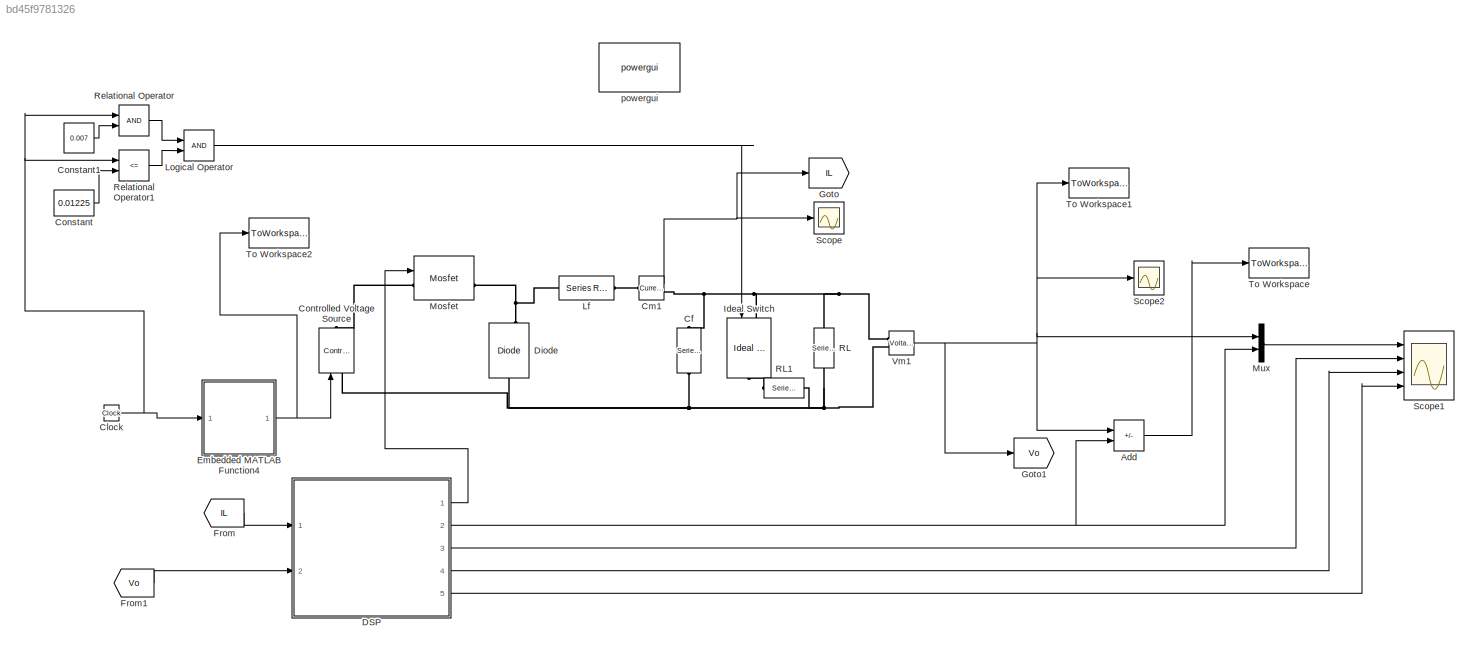
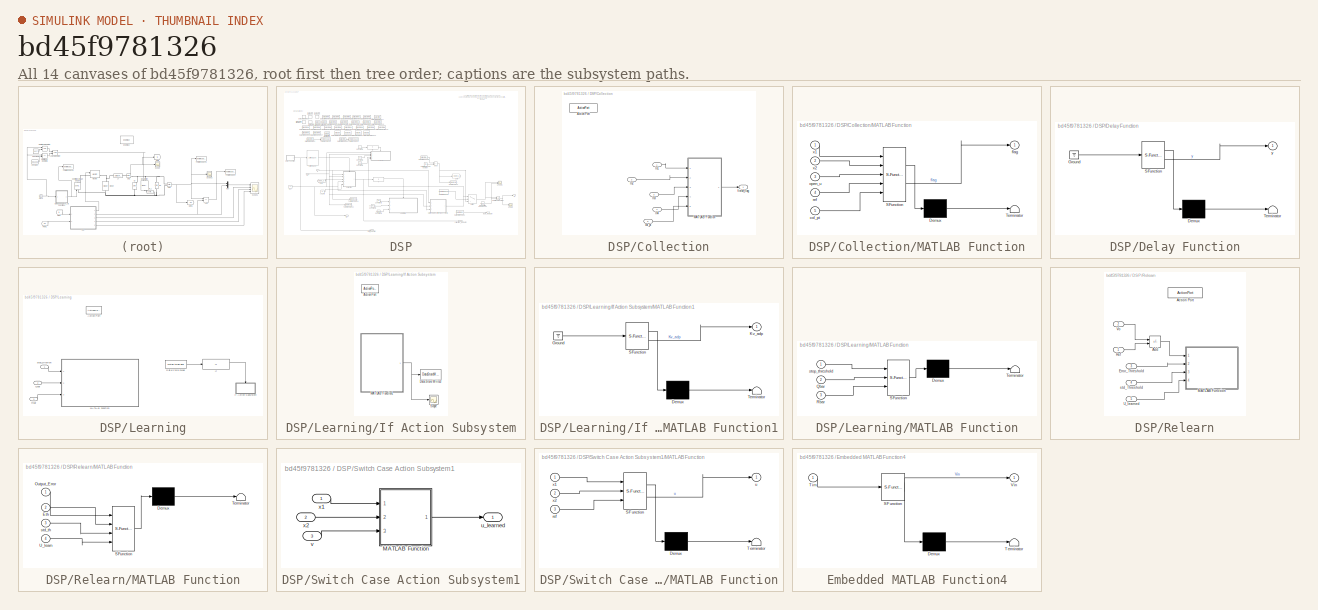
[diagram: thumbnail index - all 14 canvases of the model, root first then tree order]
MODEL slx_bd45f9781326
KIND model
CONFIG AbsTol = auto
CONFIG EnableMultiTasking = off
CONFIG FixedStep = auto
CONFIG MaxStep = 1e-7
CONFIG MinStep = auto
CONFIG RelTol = 1e-5
CONFIG SampleTimeConstraint = Unconstrained
CONFIG Solver = ode45
CONFIG SolverName = ode45
CONFIG StartTime = 0.0
CONFIG StopTime = 2.5e-5*800
BLOCK [Sum] Add
  IconShape = rectangular
  Inputs = +-
  Ports = [2, 1]
BLOCK [Reference] Cf  REF=powerlib/Elements/Series RLC Branch
  NameLocation = left
  Ports = [0, 0, 0, 0, 0, 1, 1]
  SourceBlock = powerlib/Elements/Series RLC Branch
  SourceProductBaseCode = PS
  SourceType = Series RLC Branch
BLOCK [Clock] Clock
BLOCK [Reference] Cm1  REF=powerlib/Measurements/Current Measurement
  Ports = [0, 1, 0, 0, 0, 1, 1]
  SourceBlock = powerlib/Measurements/Current Measurement
  SourceProductBaseCode = PS
  SourceType = Current Measurement
  UserDataPersistent = on
BLOCK [Constant] Constant
  Value = 0.01225
BLOCK [Constant] Constant1
  Value = 0.007
BLOCK [Reference] Controlled Voltage Source  REF=powerlib/Electrical
Sources/Controlled Voltage Source
  NameLocation = right
  Ports = [1, 0, 0, 0, 0, 1, 1]
  SourceBlock = powerlib/Electrical\nSources/Controlled Voltage Source
  SourceProductBaseCode = PS
  SourceType = Controlled Voltage Source
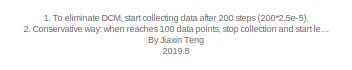
[diagram: DSP - part 1/5, top right region]
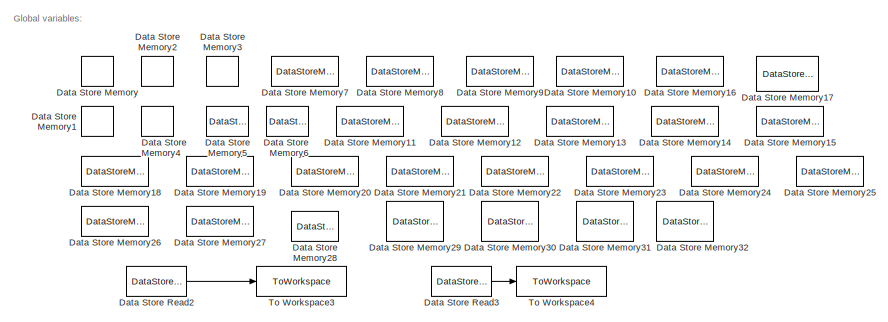
[diagram: DSP - part 2/5, top left region]
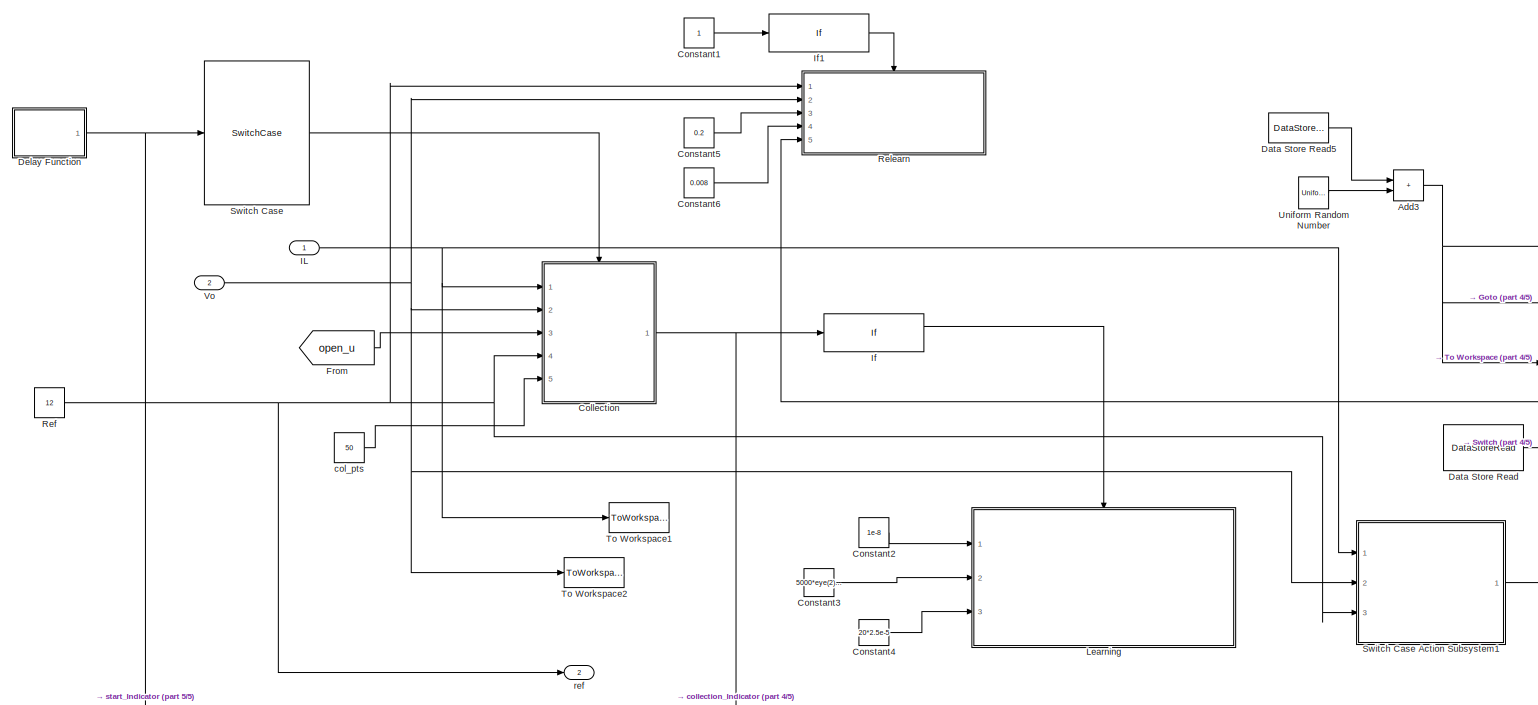
[diagram: DSP - part 3/5, central region]
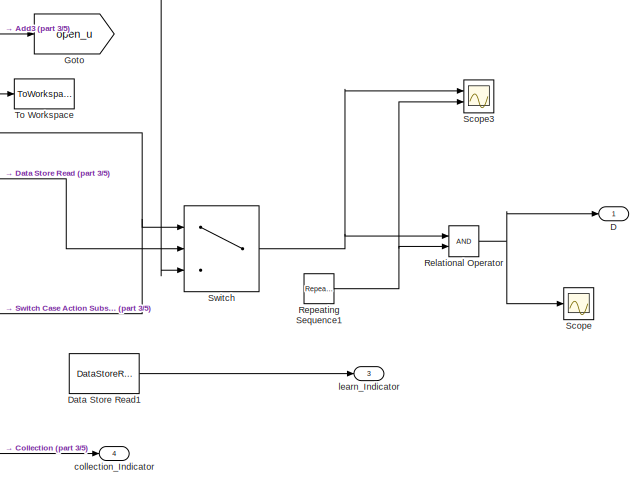
[diagram: DSP - part 4/5, bottom right region]
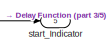
[diagram: DSP - part 5/5, bottom center region]
BLOCK [SubSystem] DSP
  Ports = [2, 5]
  RequestExecContextInheritance = off
BLOCK [Sum] DSP/Add3
  IconShape = rectangular
  Ports = [2, 1]
BLOCK [SubSystem] DSP/Collection
  Ports = [5, 1, 0, 0, 0, 0, 0, 1]
  RequestExecContextInheritance = off
  TreatAsAtomicUnit = on
BLOCK [ActionPort] DSP/Collection/Action Port
  ActionPortLabel = case [ 2 ]:
BLOCK [Inport] DSP/Collection/In1
BLOCK [Inport] DSP/Collection/In2
  Port = 2
BLOCK [Inport] DSP/Collection/In3
  Port = 3
BLOCK [Inport] DSP/Collection/In4
  Port = 4
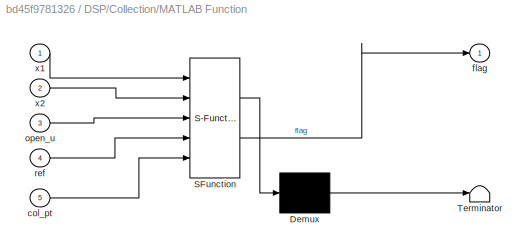
BLOCK [SubSystem] DSP/Collection/MATLAB Function
  ErrorFcn = Stateflow.Translate.translate
  PermitHierarchicalResolution = ExplicitOnly
  Ports = [5, 1]
  RequestExecContextInheritance = off
  SFBlockType = MATLAB Function
  SystemSampleTime = 2.5e-5
  TreatAsAtomicUnit = on
BLOCK [Demux] DSP/Collection/MATLAB Function/ Demux 
  Outputs = 1
  Ports = [1, 1]
BLOCK [S-Function] DSP/Collection/MATLAB Function/ SFunction 
  EnableBusSupport = on
  FunctionName = sf_sfun
  PortCounts = [5 2]
  Ports = [5, 2]
  SFcnIsStateOwnerBlock = off
  SFunctionDeploymentMode = off
  Tag = Stateflow S-Function 2
BLOCK [Terminator] DSP/Collection/MATLAB Function/ Terminator 
BLOCK [Inport] DSP/Collection/MATLAB Function/col_pt
  Port = 5
BLOCK [Outport] DSP/Collection/MATLAB Function/flag
BLOCK [Inport] DSP/Collection/MATLAB Function/open_u
  Port = 3
BLOCK [Inport] DSP/Collection/MATLAB Function/ref
  Port = 4
BLOCK [Inport] DSP/Collection/MATLAB Function/x1
BLOCK [Inport] DSP/Collection/MATLAB Function/x2
  Port = 2
BLOCK [Inport] DSP/Collection/col_pt
  Port = 5
BLOCK [Outport] DSP/Collection/finish_flag
BLOCK [Constant] DSP/Constant1
BLOCK [Constant] DSP/Constant2
  Value = 1e-8
BLOCK [Constant] DSP/Constant3
  Value = 5000*eye(2)*2.5e-5
BLOCK [Constant] DSP/Constant4
  Value = 20*2.5e-5
BLOCK [Constant] DSP/Constant5
  Value = 0.2
BLOCK [Constant] DSP/Constant6
  Value = 0.008
BLOCK [Outport] DSP/D
BLOCK [DataStoreMemory] DSP/Data Store Memory
  InitialValue = zeros(50,1)
  OutDataTypeStr = double
  ReadBeforeWriteMsg = warning
  ShowAdditionalParam = off
  SignalType = real
  WriteAfterReadMsg = warning
  WriteAfterWriteMsg = warning
BLOCK [DataStoreMemory] DSP/Data Store Memory1
  DataStoreName = pt
  InitialValue = 1
  OutDataTypeStr = double
  ReadBeforeWriteMsg = warning
  ShowAdditionalParam = off
  SignalType = real
  WriteAfterReadMsg = warning
  WriteAfterWriteMsg = warning
BLOCK [DataStoreMemory] DSP/Data Store Memory10
  DataStoreName = ep2_old
  InitialValue = zeros(1,2)
  OutDataTypeStr = double
  ReadBeforeWriteMsg = warning
  ShowAdditionalParam = off
  SignalType = real
  VectorParams1D = off
  WriteAfterReadMsg = warning
  WriteAfterWriteMsg = warning
BLOCK [DataStoreMemory] DSP/Data Store Memory11
  DataStoreName = Fee1
  InitialValue = zeros(50,4)
  OutDataTypeStr = double
  ReadBeforeWriteMsg = warning
  ShowAdditionalParam = off
  SignalType = real
  WriteAfterReadMsg = warning
  WriteAfterWriteMsg = warning
BLOCK [DataStoreMemory] DSP/Data Store Memory12
  DataStoreName = Fue1
  InitialValue = zeros(50,2)
  OutDataTypeStr = double
  ReadBeforeWriteMsg = warning
  ShowAdditionalParam = off
  SignalType = real
  WriteAfterReadMsg = warning
  WriteAfterWriteMsg = warning
BLOCK [DataStoreMemory] DSP/Data Store Memory13
  DataStoreName = Fuu1
  InitialValue = zeros(50,1)
  OutDataTypeStr = double
  ReadBeforeWriteMsg = warning
  ShowAdditionalParam = off
  SignalType = real
  WriteAfterReadMsg = warning
  WriteAfterWriteMsg = warning
BLOCK [DataStoreMemory] DSP/Data Store Memory14
  DataStoreName = Fve1
  InitialValue = zeros(50,2)
  OutDataTypeStr = double
  ReadBeforeWriteMsg = warning
  ShowAdditionalParam = off
  SignalType = real
  WriteAfterReadMsg = warning
  WriteAfterWriteMsg = warning
BLOCK [DataStoreMemory] DSP/Data Store Memory15
  DataStoreName = Fvu1
  InitialValue = zeros(50,1)
  OutDataTypeStr = double
  ReadBeforeWriteMsg = warning
  ShowAdditionalParam = off
  SignalType = real
  WriteAfterReadMsg = warning
  WriteAfterWriteMsg = warning
BLOCK [DataStoreMemory] DSP/Data Store Memory16
  DataStoreName = Fvv1
  InitialValue = zeros(50,1)
  OutDataTypeStr = double
  ReadBeforeWriteMsg = warning
  ShowAdditionalParam = off
  SignalType = real
  WriteAfterReadMsg = warning
  WriteAfterWriteMsg = warning
BLOCK [DataStoreMemory] DSP/Data Store Memory17
  DataLogging = on
  DataStoreName = endflag
  OutDataTypeStr = double
  ReadBeforeWriteMsg = warning
  ShowAdditionalParam = off
  SignalType = real
  WriteAfterReadMsg = warning
  WriteAfterWriteMsg = warning
BLOCK [DataStoreMemory] DSP/Data Store Memory18
  DataLogging = on
  DataStoreName = P_learn
  InitialValue = zeros(2,2)
  OutDataTypeStr = double
  ReadBeforeWriteMsg = warning
  ShowAdditionalParam = off
  SignalType = real
  WriteAfterReadMsg = warning
  WriteAfterWriteMsg = warning
BLOCK [DataStoreMemory] DSP/Data Store Memory19
  DataLogging = on
  DataStoreName = K_learn
  InitialValue = zeros(1,2)
  OutDataTypeStr = double
  ReadBeforeWriteMsg = warning
  ShowAdditionalParam = off
  SignalType = real
  VectorParams1D = off
  WriteAfterReadMsg = warning
  WriteAfterWriteMsg = warning
BLOCK [DataStoreMemory] DSP/Data Store Memory2
  DataStoreName = B
  InitialValue = zeros(50,1)
  OutDataTypeStr = double
  ReadBeforeWriteMsg = warning
  ShowAdditionalParam = off
  SignalType = real
  WriteAfterReadMsg = warning
  WriteAfterWriteMsg = warning
BLOCK [DataStoreMemory] DSP/Data Store Memory20
  DataLogging = on
  DataStoreName = SX1
  InitialValue = zeros(2,1)
  OutDataTypeStr = double
  ReadBeforeWriteMsg = warning
  ShowAdditionalParam = off
  SignalType = real
  WriteAfterReadMsg = warning
  WriteAfterWriteMsg = warning
BLOCK [DataStoreMemory] DSP/Data Store Memory21
  DataStoreName = Fee2
  InitialValue = zeros(50,4)
  OutDataTypeStr = double
  ReadBeforeWriteMsg = warning
  ShowAdditionalParam = off
  SignalType = real
  WriteAfterReadMsg = warning
  WriteAfterWriteMsg = warning
BLOCK [DataStoreMemory] DSP/Data Store Memory22
  DataStoreName = Fue2
  InitialValue = zeros(50,2)
  OutDataTypeStr = double
  ReadBeforeWriteMsg = warning
  ShowAdditionalParam = off
  SignalType = real
  WriteAfterReadMsg = warning
  WriteAfterWriteMsg = warning
BLOCK [DataStoreMemory] DSP/Data Store Memory23
  DataStoreName = Fve2
  InitialValue = zeros(50,2)
  OutDataTypeStr = double
  ReadBeforeWriteMsg = warning
  ShowAdditionalParam = off
  SignalType = real
  WriteAfterReadMsg = warning
  WriteAfterWriteMsg = warning
BLOCK [DataStoreMemory] DSP/Data Store Memory24
  DataLogging = on
  DataStoreName = QKf
  InitialValue = zeros(2,2)
  OutDataTypeStr = double
  ReadBeforeWriteMsg = warning
  ShowAdditionalParam = off
  SignalType = real
  WriteAfterReadMsg = warning
  WriteAfterWriteMsg = warning
BLOCK [DataStoreMemory] DSP/Data Store Memory25
  DataLogging = on
  DataStoreName = Kv_learn
  OutDataTypeStr = double
  ReadBeforeWriteMsg = warning
  ShowAdditionalParam = off
  SignalType = real
  WriteAfterReadMsg = warning
  WriteAfterWriteMsg = warning
BLOCK [DataStoreMemory] DSP/Data Store Memory26
  DataLogging = on
  DataStoreName = sol45
  InitialValue = zeros(2,1)
  OutDataTypeStr = double
  ReadBeforeWriteMsg = warning
  ShowAdditionalParam = off
  SignalType = real
  WriteAfterReadMsg = warning
  WriteAfterWriteMsg = warning
BLOCK [DataStoreMemory] DSP/Data Store Memory27
  DataLogging = on
  DataStoreName = K
  InitialValue = [0.2,0.2]
  OutDataTypeStr = double
  ReadBeforeWriteMsg = warning
  ShowAdditionalParam = off
  SignalType = real
  VectorParams1D = off
  WriteAfterReadMsg = warning
  WriteAfterWriteMsg = warning
BLOCK [DataStoreMemory] DSP/Data Store Memory28
  DataStoreName = Test_D
  InitialValue = zeros(50,4)
  OutDataTypeStr = double
  ReadBeforeWriteMsg = warning
  ShowAdditionalParam = off
  SignalType = real
  WriteAfterReadMsg = warning
  WriteAfterWriteMsg = warning
BLOCK [DataStoreMemory] DSP/Data Store Memory29
  DataLogging = on
  DataStoreName = Relearn
  OutDataTypeStr = double
  ReadBeforeWriteMsg = warning
  ShowAdditionalParam = off
  SignalType = real
  WriteAfterReadMsg = warning
  WriteAfterWriteMsg = warning
BLOCK [DataStoreMemory] DSP/Data Store Memory3
  DataStoreName = UU
  InitialValue = zeros(50,1)
  OutDataTypeStr = double
  ReadBeforeWriteMsg = warning
  ShowAdditionalParam = off
  SignalType = real
  WriteAfterReadMsg = warning
  WriteAfterWriteMsg = warning
BLOCK [DataStoreMemory] DSP/Data Store Memory30
  DataStoreName = Err_old
  InitialValue = zeros(1000,1)
  OutDataTypeStr = double
  ReadBeforeWriteMsg = warning
  ShowAdditionalParam = off
  SignalType = real
  WriteAfterReadMsg = warning
  WriteAfterWriteMsg = warning
BLOCK [DataStoreMemory] DSP/Data Store Memory31
  DataStoreName = ept
  InitialValue = 1
  OutDataTypeStr = double
  ReadBeforeWriteMsg = warning
  ShowAdditionalParam = off
  SignalType = real
  WriteAfterReadMsg = warning
  WriteAfterWriteMsg = warning
BLOCK [DataStoreMemory] DSP/Data Store Memory32
  DataStoreName = U_pert
  InitialValue = 0.32
  OutDataTypeStr = double
  ReadBeforeWriteMsg = warning
  ShowAdditionalParam = off
  SignalType = real
  WriteAfterReadMsg = warning
  WriteAfterWriteMsg = warning
BLOCK [DataStoreMemory] DSP/Data Store Memory4
  DataStoreName = dd
  InitialValue = 1
  OutDataTypeStr = uint8
  ReadBeforeWriteMsg = warning
  ShowAdditionalParam = off
  SignalType = real
  WriteAfterReadMsg = warning
  WriteAfterWriteMsg = warning
BLOCK [DataStoreMemory] DSP/Data Store Memory5
  DataLogging = on
  DataStoreName = X_tr1
  InitialValue = [0;1]
  OutDataTypeStr = double
  ReadBeforeWriteMsg = warning
  ShowAdditionalParam = off
  SignalType = real
  WriteAfterReadMsg = warning
  WriteAfterWriteMsg = warning
BLOCK [DataStoreMemory] DSP/Data Store Memory6
  DataLogging = on
  DataStoreName = X_tr2
  InitialValue = [1;0]
  OutDataTypeStr = double
  ReadBeforeWriteMsg = warning
  ShowAdditionalParam = off
  SignalType = real
  WriteAfterReadMsg = warning
  WriteAfterWriteMsg = warning
BLOCK [DataStoreMemory] DSP/Data Store Memory7
  DataStoreName = Dee1
  InitialValue = zeros(50,3)
  OutDataTypeStr = double
  ReadBeforeWriteMsg = warning
  ShowAdditionalParam = off
  SignalType = real
  WriteAfterReadMsg = warning
  WriteAfterWriteMsg = warning
BLOCK [DataStoreMemory] DSP/Data Store Memory8
  DataStoreName = Dee2
  InitialValue = zeros(50,3)
  OutDataTypeStr = double
  ReadBeforeWriteMsg = warning
  ShowAdditionalParam = off
  SignalType = real
  WriteAfterReadMsg = warning
  WriteAfterWriteMsg = warning
BLOCK [DataStoreMemory] DSP/Data Store Memory9
  DataStoreName = ep_old
  InitialValue = zeros(1,2)
  OutDataTypeStr = double
  ReadBeforeWriteMsg = warning
  ShowAdditionalParam = off
  SignalType = real
  VectorParams1D = off
  WriteAfterReadMsg = warning
  WriteAfterWriteMsg = warning
BLOCK [DataStoreRead] DSP/Data Store Read
  DataStoreName = endflag
  Ports = [0, 1]
BLOCK [DataStoreRead] DSP/Data Store Read1
  DataStoreName = endflag
  Ports = [0, 1]
BLOCK [DataStoreRead] DSP/Data Store Read2
  DataStoreName = Test_D
  Ports = [0, 1]
BLOCK [DataStoreRead] DSP/Data Store Read3
  DataStoreName = ep2_old
  Ports = [0, 1]
BLOCK [DataStoreRead] DSP/Data Store Read5
  DataStoreName = U_pert
  Ports = [0, 1]
BLOCK [SubSystem] DSP/Delay Function
  ErrorFcn = Stateflow.Translate.translate
  PermitHierarchicalResolution = ExplicitOnly
  Ports = [0, 1]
  RequestExecContextInheritance = off
  SFBlockType = MATLAB Function
  SystemSampleTime = 2.5e-5
  TreatAsAtomicUnit = on
BLOCK [Demux] DSP/Delay Function/ Demux 
  Outputs = 1
  Ports = [1, 1]
BLOCK [Ground] DSP/Delay Function/ Ground 
BLOCK [S-Function] DSP/Delay Function/ SFunction 
  EnableBusSupport = on
  FunctionName = sf_sfun
  PortCounts = [1 2]
  Ports = [1, 2]
  SFcnIsStateOwnerBlock = off
  SFunctionDeploymentMode = off
  Tag = Stateflow S-Function 3
BLOCK [Terminator] DSP/Delay Function/ Terminator 
BLOCK [Outport] DSP/Delay Function/y
BLOCK [From] DSP/From
  GotoTag = open_u
  TagVisibility = global
BLOCK [Goto] DSP/Goto
  GotoTag = open_u
  TagVisibility = global
BLOCK [Inport] DSP/IL
BLOCK [If] DSP/If
  IfExpression = u1~=0
  Ports = [1, 2]
BLOCK [If] DSP/If1
  IfExpression = u1~=0
  Ports = [1, 1]
  ShowElse = off
BLOCK [SubSystem] DSP/Learning
  Ports = [3, 0, 0, 0, 0, 0, 0, 1]
  RequestExecContextInheritance = off
  TreatAsAtomicUnit = on
BLOCK [ActionPort] DSP/Learning/Action Port
  ActionPortLabel = if(u1~=0)
BLOCK [DataStoreRead] DSP/Learning/Data Store Read
  DataStoreName = endflag
  Ports = [0, 1]
BLOCK [If] DSP/Learning/If
  IfExpression = u1==1
  Ports = [1, 2]
BLOCK [SubSystem] DSP/Learning/If Action Subsystem
  Ports = [0, 0, 0, 0, 0, 0, 0, 1]
  RequestExecContextInheritance = off
  TreatAsAtomicUnit = on
BLOCK [ActionPort] DSP/Learning/If Action Subsystem/Action Port
  ActionPortLabel = if(u1==1)
BLOCK [DataStoreWrite] DSP/Learning/If Action Subsystem/Data Store Write3
  DataStoreName = Kv_learn
  Ports = [1]
BLOCK [SubSystem] DSP/Learning/If Action Subsystem/MATLAB Function1
  ErrorFcn = Stateflow.Translate.translate
  PermitHierarchicalResolution = ExplicitOnly
  Ports = [0, 1]
  RequestExecContextInheritance = off
  SFBlockType = MATLAB Function
  TreatAsAtomicUnit = on
BLOCK [Demux] DSP/Learning/If Action Subsystem/MATLAB Function1/ Demux 
  Outputs = 1
  Ports = [1, 1]
BLOCK [Ground] DSP/Learning/If Action Subsystem/MATLAB Function1/ Ground 
BLOCK [S-Function] DSP/Learning/If Action Subsystem/MATLAB Function1/ SFunction 
  EnableBusSupport = on
  FunctionName = sf_sfun
  PortCounts = [1 2]
  Ports = [1, 2]
  SFcnIsStateOwnerBlock = off
  SFunctionDeploymentMode = off
  Tag = Stateflow S-Function 4
BLOCK [Terminator] DSP/Learning/If Action Subsystem/MATLAB Function1/ Terminator 
BLOCK [Outport] DSP/Learning/If Action Subsystem/MATLAB Function1/Kv_adp
BLOCK [Scope] DSP/Learning/If Action Subsystem/Scope
  Floating = off
  NumInputPorts = 1
  Ports = [1]
  ScopeSpecificationString = C++SS(StrPVP('Location','[440, 420, 1155, 889]'),StrPVP('Open','off'),MxPVP('AxesTitles',54,'struct(''axes1'',''%<SignalLabel>'')'),MxPVP('ScopeGraphics',57,'struct(''FigureColor'',''[0.5 0.5 0.5]'',''AxesColor'',''[0 0 0]'',''AxesTickColor'',''[1 1 1]'',''LineColors'',''[1 1 0;1 0 1;0 1 1;1 0 0;0 1 0;0 0 1]'',''LineStyles'',''-|-|-|-|-|-'',''LineWidths'',''[0.5 0.5 0.5 0.5 0.5 0.5]'',''MarkerStyl...<+260ch>
BLOCK [SubSystem] DSP/Learning/MATLAB Function
  ErrorFcn = Stateflow.Translate.translate
  PermitHierarchicalResolution = ExplicitOnly
  Ports = [3]
  RequestExecContextInheritance = off
  SFBlockType = MATLAB Function
  TreatAsAtomicUnit = on
BLOCK [Demux] DSP/Learning/MATLAB Function/ Demux 
  Outputs = 1
  Ports = [1, 1]
BLOCK [S-Function] DSP/Learning/MATLAB Function/ SFunction 
  EnableBusSupport = on
  FunctionName = sf_sfun
  PortCounts = [3 1]
  Ports = [3, 1]
  SFcnIsStateOwnerBlock = off
  SFunctionDeploymentMode = off
  Tag = Stateflow S-Function 1
BLOCK [Terminator] DSP/Learning/MATLAB Function/ Terminator 
BLOCK [Inport] DSP/Learning/MATLAB Function/Qbar
  Port = 2
BLOCK [Inport] DSP/Learning/MATLAB Function/Rbar
  Port = 3
BLOCK [Inport] DSP/Learning/MATLAB Function/stop_threshold
BLOCK [Inport] DSP/Learning/Qbar
  Port = 2
BLOCK [Inport] DSP/Learning/Rbar
  Port = 3
BLOCK [Inport] DSP/Learning/stop_criterion
BLOCK [Constant] DSP/Ref
  Value = 12
BLOCK [RelationalOperator] DSP/Relational Operator
  InputSameDT = off
  OutDataTypeStr = boolean
  Ports = [2, 1]
BLOCK [SubSystem] DSP/Relearn
  Ports = [5, 0, 0, 0, 0, 0, 0, 1]
  RequestExecContextInheritance = off
BLOCK [ActionPort] DSP/Relearn/Action Port
  ActionPortLabel = if(u1~=0)
BLOCK [Sum] DSP/Relearn/Add
  IconShape = rectangular
  Inputs = +-
  Ports = [2, 1]
BLOCK [Inport] DSP/Relearn/Error_Threshold
  Port = 3
BLOCK [SubSystem] DSP/Relearn/MATLAB Function
  ErrorFcn = Stateflow.Translate.translate
  PermitHierarchicalResolution = ExplicitOnly
  Ports = [4]
  RequestExecContextInheritance = off
  SFBlockType = MATLAB Function
  TreatAsAtomicUnit = on
BLOCK [Demux] DSP/Relearn/MATLAB Function/ Demux 
  Outputs = 1
  Ports = [1, 1]
BLOCK [S-Function] DSP/Relearn/MATLAB Function/ SFunction 
  EnableBusSupport = on
  FunctionName = sf_sfun
  PortCounts = [4 1]
  Ports = [4, 1]
  SFcnIsStateOwnerBlock = off
  SFunctionDeploymentMode = off
  Tag = Stateflow S-Function 6
BLOCK [Terminator] DSP/Relearn/MATLAB Function/ Terminator 
BLOCK [Inport] DSP/Relearn/MATLAB Function/Eth
  Port = 2
BLOCK [Inport] DSP/Relearn/MATLAB Function/Output_Error
BLOCK [Inport] DSP/Relearn/MATLAB Function/U_learn
  Port = 4
BLOCK [Inport] DSP/Relearn/MATLAB Function/std_th
  Port = 3
BLOCK [Inport] DSP/Relearn/Ref
BLOCK [Inport] DSP/Relearn/U_learned
  Port = 5
BLOCK [Inport] DSP/Relearn/Vo
  Port = 2
BLOCK [Inport] DSP/Relearn/std_Threshold
  Port = 4
BLOCK [Reference] DSP/Repeating Sequence1  REF=simulink/Sources/Repeating
Sequence
  Ports = [0, 1]
  SourceBlock = simulink/Sources/Repeating\nSequence
  SourceProductBaseCode = SL
  SourceType = Repeating table
BLOCK [Scope] DSP/Scope
  Floating = off
  NumInputPorts = 1
  Ports = [1]
  ScopeSpecificationString = Simulink.scopes.TimeScopeBlockCfg('CurrentConfiguration', extmgr.ConfigurationSet(extmgr.Configuration('Core','General UI',true),extmgr.Configuration('Core','Source UI',true),extmgr.Configuration('Sources','WiredSimulink',true,'DataLoggingVariableName','ScopeData1','DataLoggingSaveFormat','StructureWithTime','DataLoggingDecimation','1','DataLoggingDecimateData',true),extmgr.Configuration('Visuals'...<+1611ch>
BLOCK [Scope] DSP/Scope3
  Floating = off
  NumInputPorts = 2
  Ports = [2]
  ScopeSpecificationString = Simulink.scopes.TimeScopeBlockCfg('CurrentConfiguration', extmgr.ConfigurationSet(extmgr.Configuration('Core','General UI',true),extmgr.Configuration('Core','Source UI',true),extmgr.Configuration('Sources','WiredSimulink',true,'DataLoggingVariableName','ScopeData4','DataLoggingSaveFormat','StructureWithTime','DataLoggingDecimation','1','DataLoggingDecimateData',true),extmgr.Configuration('Visuals'...<+2330ch>
BLOCK [Switch] DSP/Switch
  InputSameDT = off
  SaturateOnIntegerOverflow = off
  Threshold = 2
BLOCK [SwitchCase] DSP/Switch Case
  CaseConditions = {1,2}
  Ports = [1, 3]
BLOCK [SubSystem] DSP/Switch Case Action Subsystem1
  Ports = [3, 1]
  RequestExecContextInheritance = off
  TreatAsAtomicUnit = on
BLOCK [SubSystem] DSP/Switch Case Action Subsystem1/MATLAB Function
  ErrorFcn = Stateflow.Translate.translate
  PermitHierarchicalResolution = ExplicitOnly
  Ports = [3, 1]
  RequestExecContextInheritance = off
  SFBlockType = MATLAB Function
  SystemSampleTime = 2.5e-5
  TreatAsAtomicUnit = on
BLOCK [Demux] DSP/Switch Case Action Subsystem1/MATLAB Function/ Demux 
  Outputs = 1
  Ports = [1, 1]
BLOCK [S-Function] DSP/Switch Case Action Subsystem1/MATLAB Function/ SFunction 
  EnableBusSupport = on
  FunctionName = sf_sfun
  PortCounts = [3 2]
  Ports = [3, 2]
  SFcnIsStateOwnerBlock = off
  SFunctionDeploymentMode = off
  Tag = Stateflow S-Function 5
BLOCK [Terminator] DSP/Switch Case Action Subsystem1/MATLAB Function/ Terminator 
BLOCK [Inport] DSP/Switch Case Action Subsystem1/MATLAB Function/ref
  Port = 3
BLOCK [Outport] DSP/Switch Case Action Subsystem1/MATLAB Function/u
BLOCK [Inport] DSP/Switch Case Action Subsystem1/MATLAB Function/x1
BLOCK [Inport] DSP/Switch Case Action Subsystem1/MATLAB Function/x2
  Port = 2
BLOCK [Outport] DSP/Switch Case Action Subsystem1/u_learned
BLOCK [Inport] DSP/Switch Case Action Subsystem1/v
  Port = 3
BLOCK [Inport] DSP/Switch Case Action Subsystem1/x1
BLOCK [Inport] DSP/Switch Case Action Subsystem1/x2
  Port = 2
BLOCK [ToWorkspace] DSP/To Workspace
  FixptAsFi = on
  MaxDataPoints = inf
  Ports = [1]
  SampleTime = 2.5e-5
  SaveFormat = Structure With Time
  VariableName = bar_duty1
BLOCK [ToWorkspace] DSP/To Workspace1
  FixptAsFi = on
  MaxDataPoints = inf
  Ports = [1]
  SampleTime = 2.5e-5
  SaveFormat = Structure With Time
  VariableName = IL
BLOCK [ToWorkspace] DSP/To Workspace2
  FixptAsFi = on
  MaxDataPoints = inf
  Ports = [1]
  SampleTime = 2.5e-5
  SaveFormat = Structure With Time
  VariableName = VO
BLOCK [ToWorkspace] DSP/To Workspace3
  FixptAsFi = on
  MaxDataPoints = inf
  Ports = [1]
  SampleTime = -1
  SaveFormat = Timeseries
  VariableName = Test_out
BLOCK [ToWorkspace] DSP/To Workspace4
  FixptAsFi = on
  MaxDataPoints = inf
  Ports = [1]
  SampleTime = -1
  SaveFormat = Timeseries
  VariableName = ep2_out
BLOCK [UniformRandomNumber] DSP/Uniform Random Number
  Maximum = 5e-3
  Minimum = -5e-3
  SampleTime = 2.5e-5
BLOCK [Inport] DSP/Vo
  Port = 2
BLOCK [Constant] DSP/col_pts
  Value = 50
BLOCK [Outport] DSP/collection_Indicator
  Port = 4
BLOCK [Outport] DSP/learn_Indicator
  Port = 3
BLOCK [Outport] DSP/ref
  Port = 2
BLOCK [Outport] DSP/start_Indicator
  Port = 5
BLOCK [Reference] Diode  REF=powerlib/Power
Electronics/Diode
  NameLocation = right
  Ports = [0, 1, 0, 0, 0, 1, 1]
  SourceBlock = powerlib/Power\nElectronics/Diode
  SourceProductBaseCode = PS
  SourceType = Diode
BLOCK [SubSystem] Embedded MATLAB Function4
  ErrorFcn = Stateflow.Translate.translate
  PermitHierarchicalResolution = ExplicitOnly
  Ports = [1, 1]
  RequestExecContextInheritance = off
  SFBlockType = MATLAB Function
  SystemSampleTime = 2.5e-5
  TreatAsAtomicUnit = on
BLOCK [Demux] Embedded MATLAB Function4/ Demux 
  Outputs = 1
  Ports = [1, 1]
BLOCK [S-Function] Embedded MATLAB Function4/ SFunction 
  EnableBusSupport = on
  FunctionName = sf_sfun
  PortCounts = [1 2]
  Ports = [1, 2]
  SFcnIsStateOwnerBlock = off
  SFunctionDeploymentMode = off
  Tag = Stateflow S-Function 8
BLOCK [Terminator] Embedded MATLAB Function4/ Terminator 
BLOCK [Inport] Embedded MATLAB Function4/Tim
BLOCK [Outport] Embedded MATLAB Function4/Vin
BLOCK [From] From
  GotoTag = IL
BLOCK [From] From1
  GotoTag = Vo
BLOCK [Goto] Goto
  GotoTag = IL
BLOCK [Goto] Goto1
  GotoTag = Vo
BLOCK [Reference] Ideal Switch  REF=powerlib/Power
Electronics/Ideal Switch
  NameLocation = left
  Ports = [1, 0, 0, 0, 0, 1, 1]
  SourceBlock = powerlib/Power\nElectronics/Ideal Switch
  SourceProductBaseCode = PS
  SourceType = Ideal Switch
BLOCK [Reference] Lf  REF=powerlib/Elements/Series RLC Branch
  Ports = [0, 0, 0, 0, 0, 1, 1]
  SourceBlock = powerlib/Elements/Series RLC Branch
  SourceProductBaseCode = PS
  SourceType = Series RLC Branch
BLOCK [Logic] Logical Operator
  AllPortsSameDT = off
  OutDataTypeStr = boolean
  Ports = [2, 1]
BLOCK [Reference] Mosfet  REF=powerlib/Power
Electronics/Mosfet
  Ports = [1, 1, 0, 0, 0, 1, 1]
  SourceBlock = powerlib/Power\nElectronics/Mosfet
  SourceProductBaseCode = PS
  SourceType = Mosfet
BLOCK [Mux] Mux
  DisplayOption = bar
  Inputs = 2
  Ports = [2, 1]
BLOCK [Reference] RL  REF=powerlib/Elements/Series RLC Branch
  NameLocation = left
  Ports = [0, 0, 0, 0, 0, 1, 1]
  SourceBlock = powerlib/Elements/Series RLC Branch
  SourceProductBaseCode = PS
  SourceType = Series RLC Branch
BLOCK [Reference] RL1  REF=powerlib/Elements/Series RLC Branch
  Ports = [0, 0, 0, 0, 0, 1, 1]
  SourceBlock = powerlib/Elements/Series RLC Branch
  SourceProductBaseCode = PS
  SourceType = Series RLC Branch
BLOCK [RelationalOperator] Relational Operator
  InputSameDT = off
  OutDataTypeStr = boolean
  Ports = [2, 1]
  RndMeth = Simplest
BLOCK [RelationalOperator] Relational Operator1
  InputSameDT = off
  Operator = <=
  OutDataTypeStr = boolean
  Ports = [2, 1]
  RndMeth = Simplest
BLOCK [Scope] Scope
  Floating = off
  NumInputPorts = 1
  Ports = [1]
  ScopeSpecificationString = Simulink.scopes.TimeScopeBlockCfg('CurrentConfiguration', extmgr.ConfigurationSet(extmgr.Configuration('Core','General UI',true),extmgr.Configuration('Core','Source UI',true),extmgr.Configuration('Sources','WiredSimulink',true,'DataLoggingVariableName','ScopeData1','DataLoggingSaveFormat','Array','DataLoggingDecimation','1','DataLoggingDecimateData',true),extmgr.Configuration('Visuals','Time Domai...<+1650ch>
BLOCK [Scope] Scope1
  Floating = off
  NumInputPorts = 4
  Ports = [4]
  ScopeSpecificationString = Simulink.scopes.TimeScopeBlockCfg('CurrentConfiguration', extmgr.ConfigurationSet(extmgr.Configuration('Core','General UI',true),extmgr.Configuration('Core','Source UI',true),extmgr.Configuration('Sources','WiredSimulink',true,'DataLoggingVariableName','ScopeData2','DataLoggingSaveFormat','Array','DataLoggingDecimation','1','DataLoggingDecimateData',true),extmgr.Configuration('Visuals','Time Domai...<+3699ch>
BLOCK [Scope] Scope2
  Floating = off
  NumInputPorts = 1
  Ports = [1]
  ScopeSpecificationString = Simulink.scopes.TimeScopeBlockCfg('CurrentConfiguration', extmgr.ConfigurationSet(extmgr.Configuration('Core','General UI',true),extmgr.Configuration('Core','Source UI',true),extmgr.Configuration('Sources','WiredSimulink',true,'DataLoggingVariableName','ScopeData3','DataLoggingSaveFormat','Array','DataLoggingDecimation','1','DataLoggingDecimateData',true),extmgr.Configuration('Visuals','Time Domai...<+1677ch>
BLOCK [ToWorkspace] To Workspace
  FixptAsFi = on
  MaxDataPoints = inf
  Ports = [1]
  SampleTime = -1
  SaveFormat = Timeseries
  VariableName = errout
BLOCK [ToWorkspace] To Workspace1
  FixptAsFi = on
  MaxDataPoints = inf
  Ports = [1]
  SampleTime = -1
  SaveFormat = Timeseries
  VariableName = y_out
BLOCK [ToWorkspace] To Workspace2
  FixptAsFi = on
  MaxDataPoints = inf
  Ports = [1]
  SampleTime = -1
  SaveFormat = Timeseries
  VariableName = v_in
BLOCK [Reference] Vm1  REF=powerlib/Measurements/Voltage Measurement
  Ports = [0, 1, 0, 0, 0, 2]
  SourceBlock = powerlib/Measurements/Voltage Measurement
  SourceProductBaseCode = PS
  SourceType = Voltage Measurement
  UserDataPersistent = on
BLOCK [Reference] powergui  REF=powerlib/powergui
  Ports = []
  Priority = 1
  SourceBlock = powerlib/powergui
  SourceProductBaseCode = PS
  SourceType = PSB option menu block
ANNOTATION DSP: 1. To eliminate DCM, start collecting data after 200 steps (200*2.5e-5), 2. Conservative way: when reaches 100 data points, stop collection and start learning. By Jiaxin Teng 2019.8
ANNOTATION DSP: Global variables:
LINE Add:1 -> To Workspace:1
NET Clock:1 -> Embedded MATLAB Function4:1, Relational Operator1:1, Relational Operator:1
NET Cm1:1 -> Goto:1, Scope:1
LINE Constant1:1 -> Relational Operator:2
LINE Constant:1 -> Relational Operator1:2
NET DSP/Add3:1 -> DSP/Goto:1, DSP/Switch:3, DSP/To Workspace:1
LINE DSP/Collection/In1:1 -> DSP/Collection/MATLAB Function:1
LINE DSP/Collection/In2:1 -> DSP/Collection/MATLAB Function:2
LINE DSP/Collection/In3:1 -> DSP/Collection/MATLAB Function:3
LINE DSP/Collection/In4:1 -> DSP/Collection/MATLAB Function:4
LINE DSP/Collection/MATLAB Function:1 -> DSP/Collection/finish_flag:1
LINE DSP/Collection/col_pt:1 -> DSP/Collection/MATLAB Function:5
NET DSP/Collection:1 -> DSP/If:1, DSP/collection_Indicator:1
LINE DSP/Constant1:1 -> DSP/If1:1
LINE DSP/Constant2:1 -> DSP/Learning:1
LINE DSP/Constant3:1 -> DSP/Learning:2
LINE DSP/Constant4:1 -> DSP/Learning:3
LINE DSP/Constant5:1 -> DSP/Relearn:3
LINE DSP/Constant6:1 -> DSP/Relearn:4
LINE DSP/Data Store Read1:1 -> DSP/learn_Indicator:1
LINE DSP/Data Store Read2:1 -> DSP/To Workspace3:1
LINE DSP/Data Store Read3:1 -> DSP/To Workspace4:1
LINE DSP/Data Store Read5:1 -> DSP/Add3:1
LINE DSP/Data Store Read:1 -> DSP/Switch:2
NET DSP/Delay Function:1 -> DSP/Switch Case:1, DSP/start_Indicator:1
LINE DSP/From:1 -> DSP/Collection:3
NET DSP/IL:1 -> DSP/Collection:1, DSP/Switch Case Action Subsystem1:1, DSP/To Workspace1:1
LINE DSP/If1:1 -> DSP/Relearn:ifaction
LINE DSP/If:1 -> DSP/Learning:ifaction
LINE DSP/Learning/Data Store Read:1 -> DSP/Learning/If:1
NET DSP/Learning/If Action Subsystem/MATLAB Function1:1 -> DSP/Learning/If Action Subsystem/Data Store Write3:1, DSP/Learning/If Action Subsystem/Scope:1
LINE DSP/Learning/If:1 -> DSP/Learning/If Action Subsystem:ifaction
LINE DSP/Learning/Qbar:1 -> DSP/Learning/MATLAB Function:2
LINE DSP/Learning/Rbar:1 -> DSP/Learning/MATLAB Function:3
LINE DSP/Learning/stop_criterion:1 -> DSP/Learning/MATLAB Function:1
NET DSP/Ref:1 -> DSP/Collection:4, DSP/Relearn:1, DSP/Switch Case Action Subsystem1:3, DSP/ref:1
NET DSP/Relational Operator:1 -> DSP/D:1, DSP/Scope:1
LINE DSP/Relearn/Add:1 -> DSP/Relearn/MATLAB Function:1
LINE DSP/Relearn/Error_Threshold:1 -> DSP/Relearn/MATLAB Function:2
LINE DSP/Relearn/Ref:1 -> DSP/Relearn/Add:2
LINE DSP/Relearn/U_learned:1 -> DSP/Relearn/MATLAB Function:4
LINE DSP/Relearn/Vo:1 -> DSP/Relearn/Add:1
LINE DSP/Relearn/std_Threshold:1 -> DSP/Relearn/MATLAB Function:3
NET DSP/Repeating Sequence1:1 -> DSP/Relational Operator:2, DSP/Scope3:2
LINE DSP/Switch Case Action Subsystem1/MATLAB Function:1 -> DSP/Switch Case Action Subsystem1/u_learned:1
LINE DSP/Switch Case Action Subsystem1/v:1 -> DSP/Switch Case Action Subsystem1/MATLAB Function:3
LINE DSP/Switch Case Action Subsystem1/x1:1 -> DSP/Switch Case Action Subsystem1/MATLAB Function:1
LINE DSP/Switch Case Action Subsystem1/x2:1 -> DSP/Switch Case Action Subsystem1/MATLAB Function:2
NET DSP/Switch Case Action Subsystem1:1 -> DSP/Relearn:5, DSP/Switch:1
LINE DSP/Switch Case:2 -> DSP/Collection:ifaction
NET DSP/Switch:1 -> DSP/Relational Operator:1, DSP/Scope3:1
LINE DSP/Uniform Random Number:1 -> DSP/Add3:2
NET DSP/Vo:1 -> DSP/Collection:2, DSP/Relearn:2, DSP/Switch Case Action Subsystem1:2, DSP/To Workspace2:1
LINE DSP/col_pts:1 -> DSP/Collection:5
LINE DSP:1 -> Mosfet:1
NET DSP:2 -> Add:2, Mux:2
LINE DSP:3 -> Scope1:2
LINE DSP:4 -> Scope1:3
LINE DSP:5 -> Scope1:4
NET Embedded MATLAB Function4:1 -> Controlled Voltage Source:1, To Workspace2:1
LINE From1:1 -> DSP:2
LINE From:1 -> DSP:1
LINE Logical Operator:1 -> Ideal Switch:1
LINE Mux:1 -> Scope1:1
LINE Relational Operator1:1 -> Logical Operator:2
LINE Relational Operator:1 -> Logical Operator:1
NET Vm1:1 -> Add:1, Goto1:1, Mux:1, Scope2:1, To Workspace1:1
PNET net1: Cf:LConn1 -- Cm1:RConn1 -- Ideal Switch:LConn1 -- RL:LConn1 -- Vm1:LConn1
PNET net2: Cf:RConn1 -- Controlled Voltage Source:LConn1 -- Diode:LConn1 -- RL1:RConn1 -- RL:RConn1 -- Vm1:LConn2
PLINE Cm1:LConn1 -- Lf:RConn1
PLINE Controlled Voltage Source:RConn1 -- Mosfet:LConn1
PNET net3: Diode:RConn1 -- Lf:LConn1 -- Mosfet:RConn1
PLINE Ideal Switch:RConn1 -- RL1:LConn1
note: NET lines group one-source signal fan-out (src -> all destinations, sorted); 1:1 wires keep LINE; PNET lines group multi-terminal physical nets as a canonical sorted terminal list (undirected conserving connections); 2-terminal nets keep the pairwise PLINE form
CHART DSP/Learning/If Action
Subsystem/MATLAB Function1 states=1 transitions=1
  STATE_LABEL 'eML_blk_kernel()'
  STATE_LABEL "SCRIPT:\nfunction Kv_adp  = fcn\nglobal Dee2 Fee2 Fue2 Fve2 Fvu1 Fuu1 Fvv1 K_learn SX1 endflag QKf X_tr1 X_tr2 sol45\n\n\n    phi12=Dee2(2:end,:);\n    Y2=Fee2(1:end-1,:)*QKf(:); \n    phi22=-2*((Fee2(1:end-1,:)*kron(K_learn',eye(2)))+Fue2(1:end-1,:));\n    phi32=-Fuu1(1:end-1,:)+Fee2(1:end-1,:)*kron(K_learn',K_learn');\n    phi42=-Fvv1(1:end-1,:);\n    phi52=2*Fve2(1:end-1,:);\n    phi62=2*Fvu1(1:end-1);\n  ...<+304ch>"
CHART DSP/Switch Case Action
Subsystem1/MATLAB Function states=1 transitions=1
  STATE_LABEL 'eML_blk_kernel()'
  STATE_LABEL 'SCRIPT:\nfunction u = fcn(x1,x2,ref)\nglobal K_learn Kv_learn\n\nu=-K_learn*[x1;x2]+Kv_learn*ref;\n\nif(u>1)\n    u=1;\nelseif(u<0)\n    u=0;\nend\n\nend\n'
CHART DSP/Relearn/MATLAB Function states=1 transitions=1
  STATE_LABEL 'eML_blk_kernel()'
  STATE_LABEL 'SCRIPT:\nfunction fcn(Output_Error, Eth, std_th, U_learn)\nglobal endflag pt Relearn Err_old ept U_pert\n\nErr_old(ept) = Output_Error;\nept = ept+1;\nif ept>(length(Err_old))\n    ept=ept-(length(Err_old));\nend\nerr_mean = mean(Err_old);\nerr_std = std(Err_old);\n\nif ( (abs(err_mean) > Eth) && (err_std < std_th) ) && ( (endflag == 2)&& (Relearn == 0) )\n    U_pert = U_learn;\n    pt=1;\n    endflag=0;\n\nend\n\ne...<+3ch>'
CHART Embedded
MATLAB Function4 states=1 transitions=1
  STATE_LABEL 'eML_blk_kernel()'
  STATE_LABEL 'SCRIPT:\nfunction Vin = fcn(Tim)  \n\nVin=40;\n\n% if (Tim>0.009)&&(Tim<0.01275)\n%     Vin=48;\n% elseif (Tim>=0.01275)&&(Tim<0.0163)\n%     Vin=60;\n% elseif (Tim>=0.0163)\n%     Vin=36;\n% end\n\nend'
CHART DSP/Learning/MATLAB Function states=1 transitions=1
  STATE_LABEL 'eML_blk_kernel()'
  STATE_LABEL "SCRIPT:\nfunction fcn(stop_threshold,Qbar,Rbar)\nglobal Dee1 Fee1 Fue1 Fve1 Fvu1 Fuu1 Fvv1 endflag QKf sol45 P_learn K_learn SX1 K\n    \nphi1=Dee1(2:end,:); Pp=zeros(2); \n\n\n%for m=1:50\nwhile endflag==0\nQK=-Qbar-K'*Rbar*K;\n\nphi2=-2*((Fee1(1:end-1,:)*kron(K',eye(2)))+Fue1(1:end-1,:));\nphi3=-Fuu1(1:end-1)+Fee1(1:end-1,:)*kron(K',K');\nphi4=-Fvv1(1:end-1);\nphi5=2*Fve1(1:end-1,:);\nphi6=2*Fvu1(1:end-1);\n\nX=...<+331ch>"
CHART DSP/Collection/MATLAB Function states=1 transitions=1
  STATE_LABEL 'eML_blk_kernel()'
  STATE_LABEL "SCRIPT:\nfunction flag=fcn(x1,x2,open_u,ref, col_pt)\nglobal A B UU pt X_tr1 X_tr2 Dee1 Dee2 Fee1 Fee2 Fue1 Fue2 Fve1...\n    Fve2 Fvu1 Fuu1 Fvv1 ep_old ep2_old Test_D Relearn\n\nflag=0;\n\nX_open=[x1 x2];\n\nep=X_open-ref*X_tr1';\nep2=X_open-ref*X_tr2';\ndee1=kron(ep,ep)-kron(ep_old,ep_old);\ndee2=kron(ep2,ep2)-kron(ep2_old,ep2_old);\nfee1=kron(ep,ep);\nfee2=kron(ep2,ep2);\nfue1=kron(open_u,ep);\nfue2=kron(open_...<+857ch>"
CHART DSP/Delay Function states=1 transitions=1
  STATE_LABEL 'eML_blk_kernel()'
  STATE_LABEL 'SCRIPT:\nfunction y = fcn\nglobal dd\n\nif dd<=200\n    y=1;\n    dd=dd+1;\nelse\n    y=2;\nend\n\nend\n'
CHART  states=0 transitions=0
CHART  states=0 transitions=0
CHART  states=0 transitions=0
CHART  states=0 transitions=0
CHART  states=0 transitions=0
CHART  states=0 transitions=0
CHART  states=0 transitions=0
